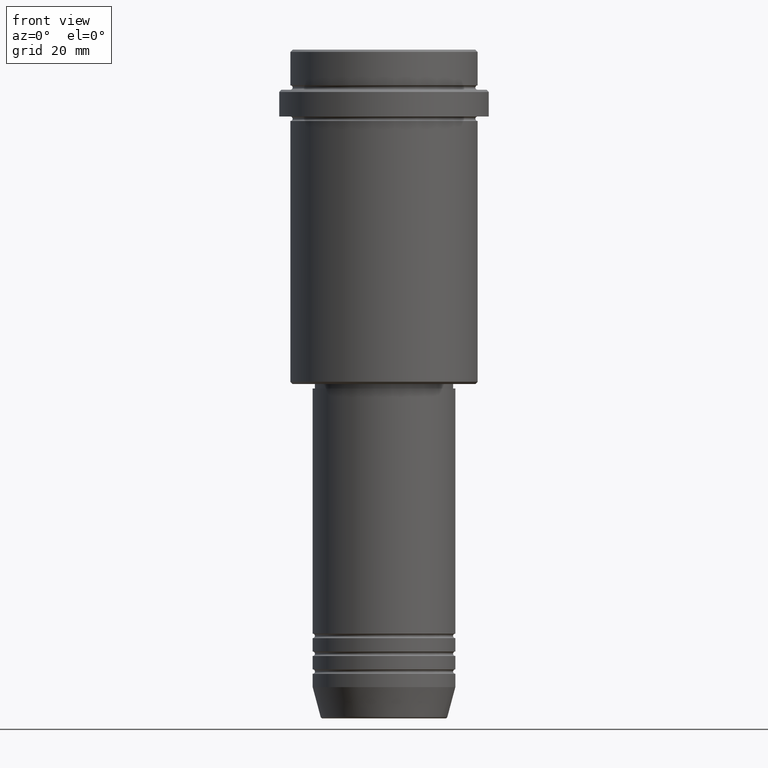
[diagram: clean part render]
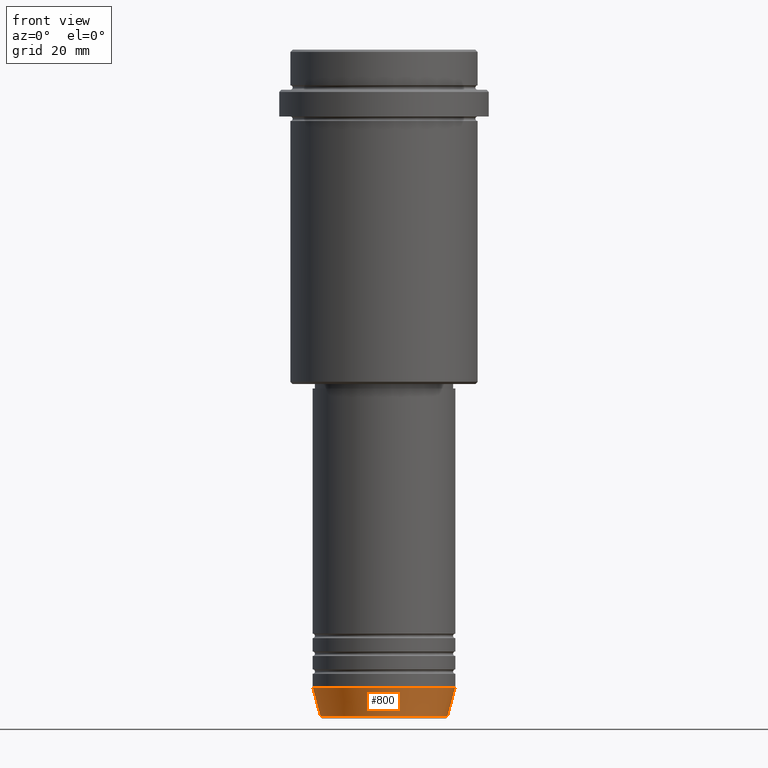
[diagram: same view with one face highlighted and labeled with its STEP entity id]
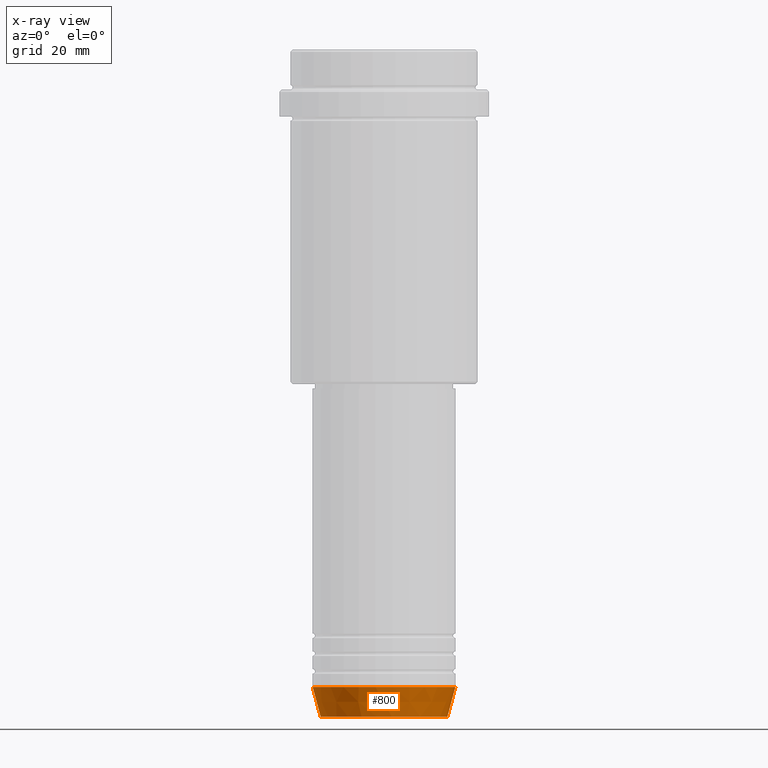
[diagram: x-ray of the same camera — body ghosted, the highlighted face saturated]
A machine part, front view. The second image highlights one B-rep face of the part: STEP entity #800.
The next image is the same camera in x-ray: the body ghosted, the highlighted face saturated — about 0% of this face is hidden behind the body in this view.
In plain terms, the highlighted conical surface has half-angle 15 deg.
Its self-contained STEP definition (entity closure, byte-faithful):
#12 = VECTOR ( 'NONE', #1079, 1000.000000000000000 ) ;
#88 = CONICAL_SURFACE ( 'NONE', #978, 16.00000000000000000, 0.2617993877991500740 ) ;
#162 = EDGE_CURVE ( 'NONE', #721, #704, #1391, .T. ) ;
#209 = VERTEX_POINT ( 'NONE', #841 ) ;
#266 = CARTESIAN_POINT ( 'NONE',  ( 16.00000000000000000, 0.000000000000000000, -143.0000000000000000 ) ) ;
#273 = DIRECTION ( 'NONE',  ( -0.000000000000000000, -0.000000000000000000, 1.000000000000000000 ) ) ;
#281 = EDGE_CURVE ( 'NONE', #209, #704, #451, .T. ) ;
#372 = FACE_OUTER_BOUND ( 'NONE', #1215, .T. ) ;
#409 = DIRECTION ( 'NONE',  ( -0.2588190451025213501, 3.169619151431772337E-17, 0.9659258262890680902 ) ) ;
#417 = ORIENTED_EDGE ( 'NONE', *, *, #162, .T. ) ;
#420 = CARTESIAN_POINT ( 'NONE',  ( 16.00000000000000000, 0.000000000000000000, -143.0000000000000000 ) ) ;
#422 = CARTESIAN_POINT ( 'NONE',  ( -14.22365507213718772, 1.850665122131323337E-15, -149.6294095225512422 ) ) ;
#441 = EDGE_CURVE ( 'NONE', #954, #721, #885, .T. ) ;
#451 = CIRCLE ( 'NONE', #1226, 16.00000000000000000 ) ;
#481 = VECTOR ( 'NONE', #409, 1000.000000000000000 ) ;
#484 = ORIENTED_EDGE ( 'NONE', *, *, #441, .T. ) ;
#493 = DIRECTION ( 'NONE',  ( 1.000000000000000000, 0.000000000000000000, 0.000000000000000000 ) ) ;
#552 = AXIS2_PLACEMENT_3D ( 'NONE', #1146, #623, #946 ) ;
#585 = ORIENTED_EDGE ( 'NONE', *, *, #1302, .F. ) ;
#623 = DIRECTION ( 'NONE',  ( -0.000000000000000000, -0.000000000000000000, 1.000000000000000000 ) ) ;
#699 = DIRECTION ( 'NONE',  ( 1.000000000000000000, 0.000000000000000000, 0.000000000000000000 ) ) ;
#704 = VERTEX_POINT ( 'NONE', #266 ) ;
#708 = DIRECTION ( 'NONE',  ( -0.000000000000000000, -0.000000000000000000, 1.000000000000000000 ) ) ;
#721 = VERTEX_POINT ( 'NONE', #1347 ) ;
#800 = ADVANCED_FACE ( 'NONE', ( #372 ), #88, .T. ) ;
#803 = CARTESIAN_POINT ( 'NONE',  ( 0.000000000000000000, 0.000000000000000000, -143.0000000000000000 ) ) ;
#834 = ORIENTED_EDGE ( 'NONE', *, *, #281, .F. ) ;
#841 = CARTESIAN_POINT ( 'NONE',  ( -16.00000000000000000, 1.959434878635765131E-15, -143.0000000000000000 ) ) ;
#885 = CIRCLE ( 'NONE', #552, 14.22365507213718772 ) ;
#946 = DIRECTION ( 'NONE',  ( 1.000000000000000000, 0.000000000000000000, 0.000000000000000000 ) ) ;
#951 = LINE ( 'NONE', #1143, #481 ) ;
#954 = VERTEX_POINT ( 'NONE', #422 ) ;
#978 = AXIS2_PLACEMENT_3D ( 'NONE', #803, #273, #699 ) ;
#1079 = DIRECTION ( 'NONE',  ( 0.2588190451025213501, 0.000000000000000000, 0.9659258262890680902 ) ) ;
#1143 = CARTESIAN_POINT ( 'NONE',  ( -16.00000000000000000, 1.959434878635765131E-15, -143.0000000000000000 ) ) ;
#1146 = CARTESIAN_POINT ( 'NONE',  ( 0.000000000000000000, 0.000000000000000000, -149.6294095225512422 ) ) ;
#1215 = EDGE_LOOP ( 'NONE', ( #585, #484, #417, #834 ) ) ;
#1226 = AXIS2_PLACEMENT_3D ( 'NONE', #1340, #708, #493 ) ;
#1302 = EDGE_CURVE ( 'NONE', #954, #209, #951, .T. ) ;
#1340 = CARTESIAN_POINT ( 'NONE',  ( 0.000000000000000000, 0.000000000000000000, -143.0000000000000000 ) ) ;
#1347 = CARTESIAN_POINT ( 'NONE',  ( 14.22365507213718772, 0.000000000000000000, -149.6294095225512422 ) ) ;
#1391 = LINE ( 'NONE', #420, #12 ) ;